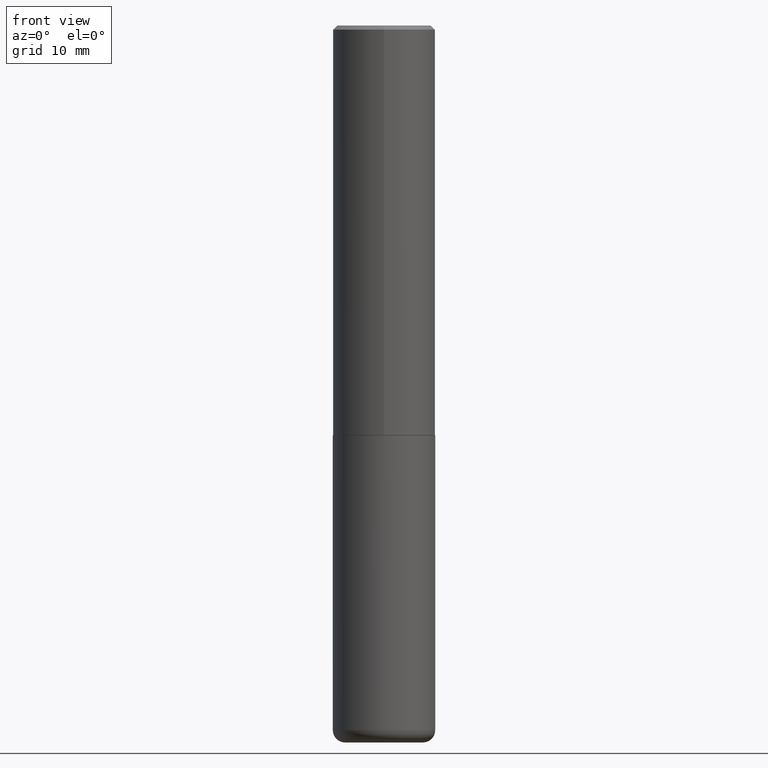
[diagram: clean part render]
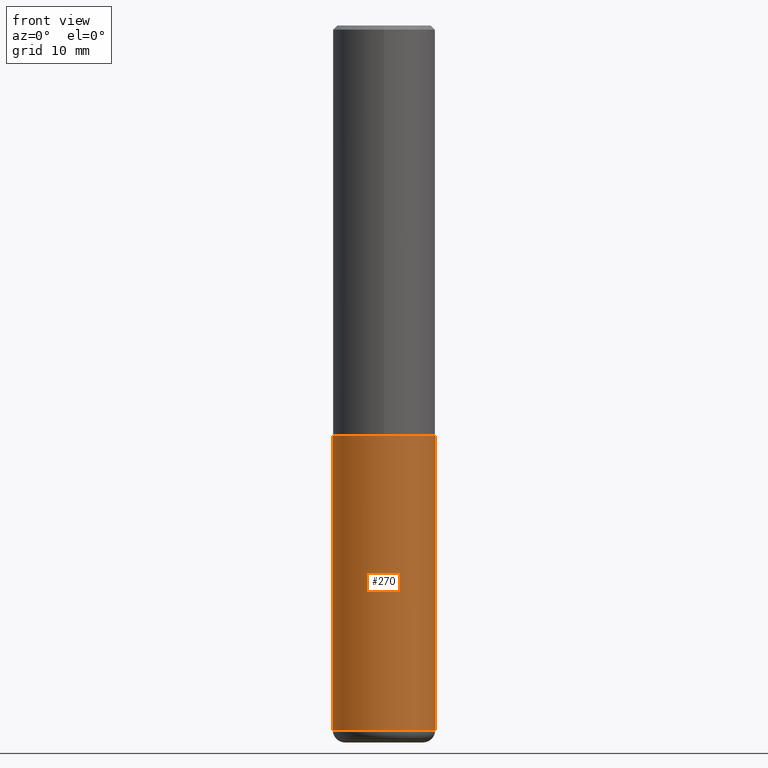
[diagram: same view with one face highlighted and labeled with its STEP entity id]
A machine part, front view. The second image highlights one B-rep face of the part: STEP entity #270.
In plain terms, the highlighted cylindrical surface (partial cylindrical patch) has radius 6.35 mm, axis along (-0, 0, 1).
Its self-contained STEP definition (entity closure, byte-faithful):
#2 = CIRCLE ( 'NONE', #313, 0.2500000000000000000 ) ;
#4 = CARTESIAN_POINT ( 'NONE',  ( -0.2499999999999999722, -1.023433896622016898E-14, -3.439999999999999947 ) ) ;
#21 = DIRECTION ( 'NONE',  ( 1.000000000000000000, -6.982962677686266711E-15, 0.000000000000000000 ) ) ;
#33 = CIRCLE ( 'NONE', #268, 0.2500000000000000000 ) ;
#52 = CARTESIAN_POINT ( 'NONE',  ( 0.2499999999999999722, -1.375643647504198770E-14, -3.439999999999999947 ) ) ;
#54 = DIRECTION ( 'NONE',  ( -2.445468806185136597E-29, 3.491481338843145583E-15, 1.000000000000000000 ) ) ;
#62 = AXIS2_PLACEMENT_3D ( 'NONE', #328, #165, #359 ) ;
#64 = CARTESIAN_POINT ( 'NONE',  ( -0.2500000000000000000, -7.720472402253106025E-15, -2.000000000000000000 ) ) ;
#69 = CYLINDRICAL_SURFACE ( 'NONE', #62, 0.2500000000000000000 ) ;
#97 = LINE ( 'NONE', #256, #343 ) ;
#102 = FACE_OUTER_BOUND ( 'NONE', #104, .T. ) ;
#104 = EDGE_LOOP ( 'NONE', ( #162, #390, #308, #356 ) ) ;
#127 = CARTESIAN_POINT ( 'NONE',  ( 8.412412693276869938E-29, -1.201069580562042103E-14, -3.439999999999999947 ) ) ;
#130 = VECTOR ( 'NONE', #302, 39.37007874015748143 ) ;
#141 = CARTESIAN_POINT ( 'NONE',  ( -0.2500000000000000000, 1.776356839400250465E-15, -1.229733772563726445E-29 ) ) ;
#162 = ORIENTED_EDGE ( 'NONE', *, *, #309, .F. ) ;
#165 = DIRECTION ( 'NONE',  ( -2.445468806185136597E-29, 3.491481338843145583E-15, 1.000000000000000000 ) ) ;
#188 = EDGE_CURVE ( 'NONE', #393, #267, #2, .T. ) ;
#226 = VERTEX_POINT ( 'NONE', #52 ) ;
#253 = DIRECTION ( 'NONE',  ( -2.445468806185136597E-29, 3.491481338843145583E-15, 1.000000000000000000 ) ) ;
#255 = EDGE_CURVE ( 'NONE', #226, #267, #97, .T. ) ;
#256 = CARTESIAN_POINT ( 'NONE',  ( 0.2500000000000000000, -1.745740669421566678E-15, 1.219044193948983948E-29 ) ) ;
#263 = VERTEX_POINT ( 'NONE', #4 ) ;
#267 = VERTEX_POINT ( 'NONE', #392 ) ;
#268 = AXIS2_PLACEMENT_3D ( 'NONE', #127, #253, #385 ) ;
#270 = ADVANCED_FACE ( 'NONE', ( #102 ), #69, .T. ) ;
#282 = CARTESIAN_POINT ( 'NONE',  ( 4.890937612370273194E-29, -6.982962677686291165E-15, -2.000000000000000000 ) ) ;
#302 = DIRECTION ( 'NONE',  ( -2.445468806185136877E-29, 3.491481338843145188E-15, 1.000000000000000000 ) ) ;
#308 = ORIENTED_EDGE ( 'NONE', *, *, #255, .T. ) ;
#309 = EDGE_CURVE ( 'NONE', #263, #393, #337, .T. ) ;
#313 = AXIS2_PLACEMENT_3D ( 'NONE', #282, #54, #21 ) ;
#328 = CARTESIAN_POINT ( 'NONE',  ( 0.000000000000000000, 0.000000000000000000, 0.000000000000000000 ) ) ;
#337 = LINE ( 'NONE', #141, #130 ) ;
#343 = VECTOR ( 'NONE', #389, 39.37007874015748143 ) ;
#356 = ORIENTED_EDGE ( 'NONE', *, *, #188, .F. ) ;
#359 = DIRECTION ( 'NONE',  ( 1.000000000000000000, -6.982962677686266711E-15, 4.876176775795935793E-29 ) ) ;
#372 = EDGE_CURVE ( 'NONE', #263, #226, #33, .T. ) ;
#385 = DIRECTION ( 'NONE',  ( 1.000000000000000000, -6.982962677686270655E-15, 0.000000000000000000 ) ) ;
#389 = DIRECTION ( 'NONE',  ( -2.445468806185136877E-29, 3.491481338843145188E-15, 1.000000000000000000 ) ) ;
#390 = ORIENTED_EDGE ( 'NONE', *, *, #372, .T. ) ;
#392 = CARTESIAN_POINT ( 'NONE',  ( 0.2500000000000000000, -8.728703347107857054E-15, -2.000000000000000000 ) ) ;
#393 = VERTEX_POINT ( 'NONE', #64 ) ;